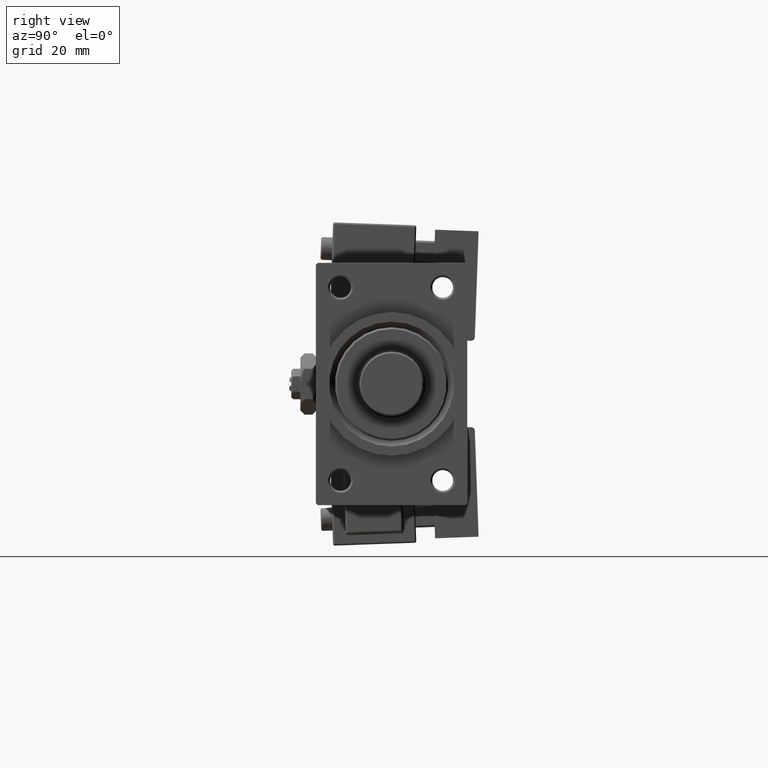
[diagram: clean part render]
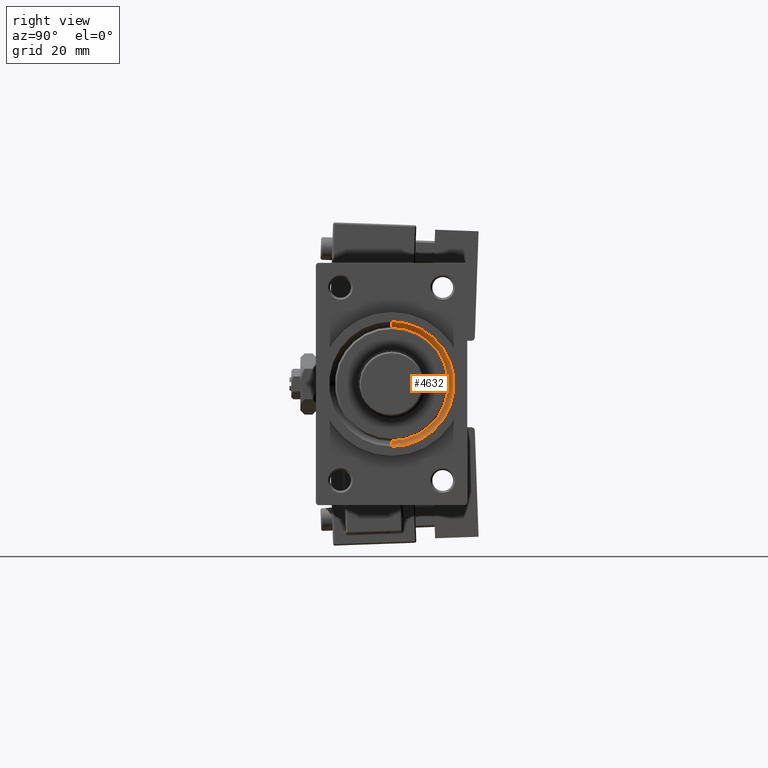
[diagram: same view with one face highlighted and labeled with its STEP entity id]
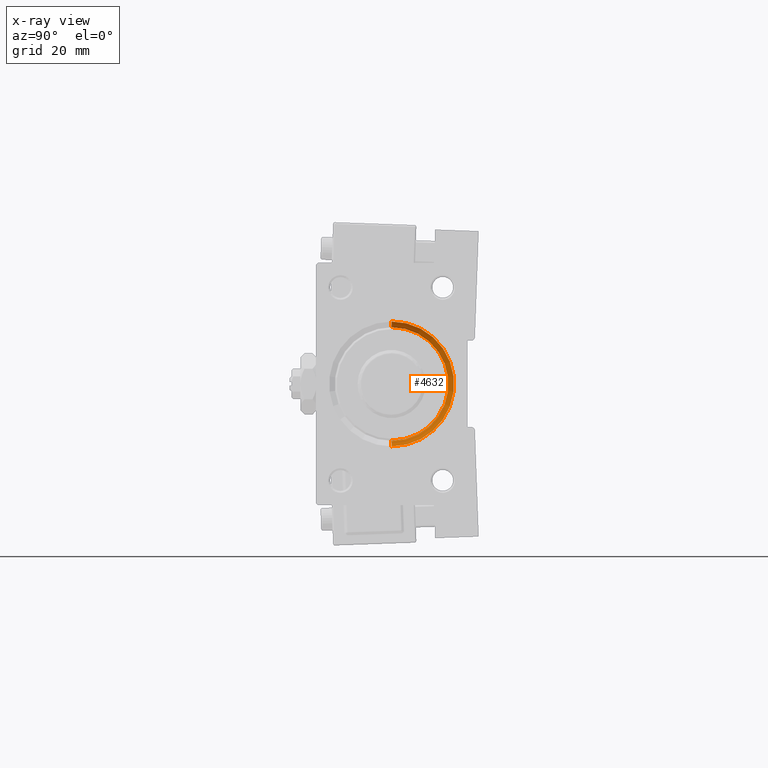
[diagram: x-ray of the same camera — body ghosted, the highlighted face saturated]
A machine part, right view. The second image highlights one B-rep face of the part: STEP entity #4632.
The next image is the same camera in x-ray: the body ghosted, the highlighted face saturated — about 0% of this face is hidden behind the body in this view.
In plain terms, the highlighted conical surface has half-angle 45 deg.
Its self-contained STEP definition (entity closure, byte-faithful):
#508 = VERTEX_POINT ( 'NONE', #36684 ) ;
#930 = CARTESIAN_POINT ( 'NONE',  ( 117.5000000000000000, 0.000000000000000000, 0.000000000000000000 ) ) ;
#1098 = VECTOR ( 'NONE', #43993, 1000.000000000000114 ) ;
#1550 = DIRECTION ( 'NONE',  ( 1.000000000000000000, 0.000000000000000000, 0.000000000000000000 ) ) ;
#1562 = CARTESIAN_POINT ( 'NONE',  ( 117.5000000000000000, 1.836970198721029589E-15, 15.00000000000000000 ) ) ;
#4541 = VERTEX_POINT ( 'NONE', #27253 ) ;
#4632 = ADVANCED_FACE ( 'NONE', ( #17060 ), #9491, .F. ) ;
#8002 = AXIS2_PLACEMENT_3D ( 'NONE', #31235, #50005, #46604 ) ;
#9491 = CONICAL_SURFACE ( 'NONE', #38591, 15.00000000000000000, 0.7853981633974437271 ) ;
#10457 = EDGE_LOOP ( 'NONE', ( #50088, #33897, #25752, #34247 ) ) ;
#12498 = LINE ( 'NONE', #1562, #1098 ) ;
#12735 = CARTESIAN_POINT ( 'NONE',  ( 119.0000000000000142, 0.000000000000000000, -16.50000000000000000 ) ) ;
#13658 = VERTEX_POINT ( 'NONE', #12735 ) ;
#13693 = CARTESIAN_POINT ( 'NONE',  ( 117.5000000000000000, 0.000000000000000000, -15.00000000000000000 ) ) ;
#13813 = EDGE_CURVE ( 'NONE', #4541, #508, #48185, .T. ) ;
#16380 = DIRECTION ( 'NONE',  ( 0.7071067811865507924, 0.000000000000000000, -0.7071067811865441310 ) ) ;
#17060 = FACE_OUTER_BOUND ( 'NONE', #10457, .T. ) ;
#17154 = CARTESIAN_POINT ( 'NONE',  ( 117.5000000000000000, 0.000000000000000000, 0.000000000000000000 ) ) ;
#18869 = CARTESIAN_POINT ( 'NONE',  ( 119.0000000000000142, 2.020667218593132706E-15, 16.50000000000000000 ) ) ;
#19636 = CIRCLE ( 'NONE', #8002, 16.50000000000000000 ) ;
#21275 = VECTOR ( 'NONE', #16380, 1000.000000000000114 ) ;
#24348 = DIRECTION ( 'NONE',  ( 0.000000000000000000, 0.000000000000000000, -1.000000000000000000 ) ) ;
#25563 = EDGE_CURVE ( 'NONE', #508, #37879, #12498, .T. ) ;
#25752 = ORIENTED_EDGE ( 'NONE', *, *, #31141, .T. ) ;
#27253 = CARTESIAN_POINT ( 'NONE',  ( 117.5000000000000000, 0.000000000000000000, -15.00000000000000000 ) ) ;
#28088 = LINE ( 'NONE', #13693, #21275 ) ;
#31141 = EDGE_CURVE ( 'NONE', #4541, #13658, #28088, .T. ) ;
#31235 = CARTESIAN_POINT ( 'NONE',  ( 119.0000000000000142, 0.000000000000000000, 0.000000000000000000 ) ) ;
#33818 = DIRECTION ( 'NONE',  ( 0.000000000000000000, 0.000000000000000000, -1.000000000000000000 ) ) ;
#33897 = ORIENTED_EDGE ( 'NONE', *, *, #13813, .F. ) ;
#34247 = ORIENTED_EDGE ( 'NONE', *, *, #43835, .F. ) ;
#36684 = CARTESIAN_POINT ( 'NONE',  ( 117.5000000000000000, 1.836970198721029589E-15, 15.00000000000000000 ) ) ;
#37879 = VERTEX_POINT ( 'NONE', #18869 ) ;
#38591 = AXIS2_PLACEMENT_3D ( 'NONE', #930, #40749, #24348 ) ;
#40749 = DIRECTION ( 'NONE',  ( 1.000000000000000000, 0.000000000000000000, 0.000000000000000000 ) ) ;
#43835 = EDGE_CURVE ( 'NONE', #37879, #13658, #19636, .T. ) ;
#43993 = DIRECTION ( 'NONE',  ( 0.7071067811865507924, 8.659560562354892183E-17, 0.7071067811865441310 ) ) ;
#45682 = AXIS2_PLACEMENT_3D ( 'NONE', #17154, #1550, #33818 ) ;
#46604 = DIRECTION ( 'NONE',  ( 0.000000000000000000, 0.000000000000000000, -1.000000000000000000 ) ) ;
#48185 = CIRCLE ( 'NONE', #45682, 15.00000000000000000 ) ;
#50005 = DIRECTION ( 'NONE',  ( -1.000000000000000000, -0.000000000000000000, -0.000000000000000000 ) ) ;
#50088 = ORIENTED_EDGE ( 'NONE', *, *, #25563, .F. ) ;